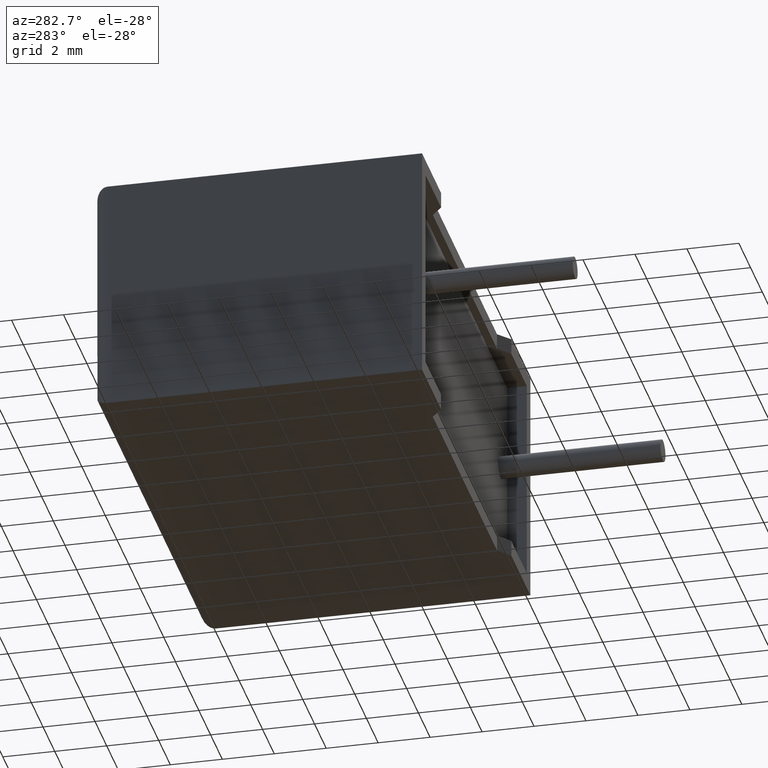
[diagram: clean part render]
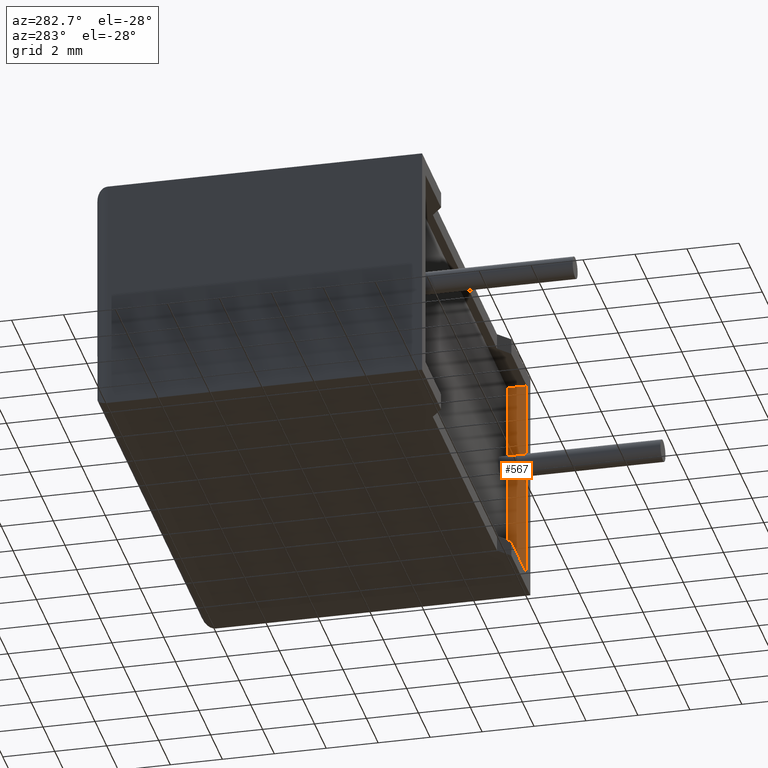
[diagram: same view with one face highlighted and labeled with its STEP entity id]
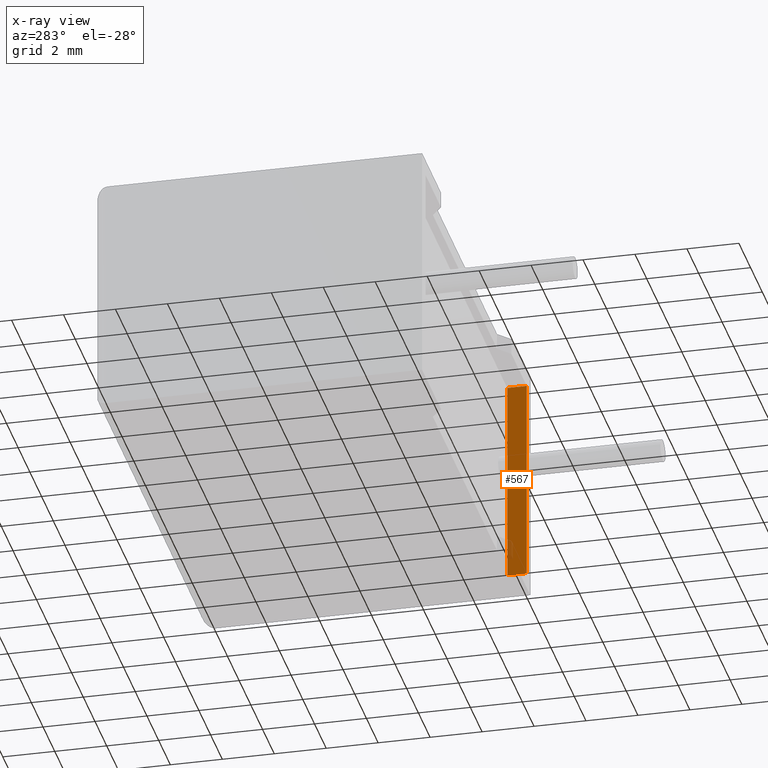
[diagram: x-ray of the same camera — body ghosted, the highlighted face saturated]
A machine part, auxiliary view. The second image highlights one B-rep face of the part: STEP entity #567.
The next image is the same camera in x-ray: the body ghosted, the highlighted face saturated — about 3% of this face is hidden behind the body in this view.
In plain terms, the highlighted planar face has unit normal (1, 0, 0).
Its self-contained STEP definition (entity closure, byte-faithful):
#7 = DIRECTION ( 'NONE',  ( -0.000000000000000000, -1.000000000000000000, -0.000000000000000000 ) ) ;
#55 = LINE ( 'NONE', #1633, #2776 ) ;
#87 = CARTESIAN_POINT ( 'NONE',  ( 17.88333339499999752, 0.000000000000000000, 0.6166666050000000343 ) ) ;
#320 = DIRECTION ( 'NONE',  ( 1.000000000000000000, 0.000000000000000000, 0.000000000000000000 ) ) ;
#567 = ADVANCED_FACE ( 'NONE', ( #884 ), #2554, .F. ) ;
#622 = VERTEX_POINT ( 'NONE', #1164 ) ;
#681 = ORIENTED_EDGE ( 'NONE', *, *, #1985, .F. ) ;
#735 = VERTEX_POINT ( 'NONE', #2252 ) ;
#773 = ORIENTED_EDGE ( 'NONE', *, *, #2844, .T. ) ;
#818 = DIRECTION ( 'NONE',  ( -0.000000000000000000, -1.000000000000000000, -0.000000000000000000 ) ) ;
#882 = LINE ( 'NONE', #2091, #2326 ) ;
#884 = FACE_OUTER_BOUND ( 'NONE', #1838, .T. ) ;
#1164 = CARTESIAN_POINT ( 'NONE',  ( 17.88333339499999752, 0.7500000000000000000, 0.6166666050000000343 ) ) ;
#1195 = VERTEX_POINT ( 'NONE', #2381 ) ;
#1237 = LINE ( 'NONE', #1515, #2218 ) ;
#1258 = LINE ( 'NONE', #87, #2936 ) ;
#1312 = EDGE_CURVE ( 'NONE', #622, #735, #1237, .T. ) ;
#1367 = DIRECTION ( 'NONE',  ( 0.000000000000000000, 0.000000000000000000, 1.000000000000000000 ) ) ;
#1515 = CARTESIAN_POINT ( 'NONE',  ( 17.88333339499999752, 0.7500000000000000000, 0.6166666050000000343 ) ) ;
#1633 = CARTESIAN_POINT ( 'NONE',  ( 17.88333339499999752, 0.7500000000000000000, 8.583333395000000365 ) ) ;
#1838 = EDGE_LOOP ( 'NONE', ( #773, #681, #2659, #2792 ) ) ;
#1985 = EDGE_CURVE ( 'NONE', #1195, #2533, #55, .T. ) ;
#2091 = CARTESIAN_POINT ( 'NONE',  ( 17.88333339499999752, 0.7500000000000000000, 0.6166666050000000343 ) ) ;
#2200 = EDGE_CURVE ( 'NONE', #622, #1195, #882, .T. ) ;
#2218 = VECTOR ( 'NONE', #818, 1000.000000000000000 ) ;
#2252 = CARTESIAN_POINT ( 'NONE',  ( 17.88333339499999752, 0.000000000000000000, 0.6166666050000000343 ) ) ;
#2324 = DIRECTION ( 'NONE',  ( 0.000000000000000000, 0.000000000000000000, -1.000000000000000000 ) ) ;
#2326 = VECTOR ( 'NONE', #1367, 1000.000000000000000 ) ;
#2337 = CARTESIAN_POINT ( 'NONE',  ( 17.88333339499999752, 0.000000000000000000, 8.583333395000000365 ) ) ;
#2381 = CARTESIAN_POINT ( 'NONE',  ( 17.88333339499999752, 0.7500000000000000000, 8.583333395000000365 ) ) ;
#2533 = VERTEX_POINT ( 'NONE', #2337 ) ;
#2554 = PLANE ( 'NONE',  #2970 ) ;
#2598 = CARTESIAN_POINT ( 'NONE',  ( 17.88333339499999752, 0.7500000000000000000, 0.6166666050000000343 ) ) ;
#2659 = ORIENTED_EDGE ( 'NONE', *, *, #2200, .F. ) ;
#2680 = DIRECTION ( 'NONE',  ( 0.000000000000000000, 0.000000000000000000, 1.000000000000000000 ) ) ;
#2776 = VECTOR ( 'NONE', #7, 1000.000000000000000 ) ;
#2792 = ORIENTED_EDGE ( 'NONE', *, *, #1312, .T. ) ;
#2844 = EDGE_CURVE ( 'NONE', #735, #2533, #1258, .T. ) ;
#2936 = VECTOR ( 'NONE', #2680, 1000.000000000000000 ) ;
#2970 = AXIS2_PLACEMENT_3D ( 'NONE', #2598, #320, #2324 ) ;